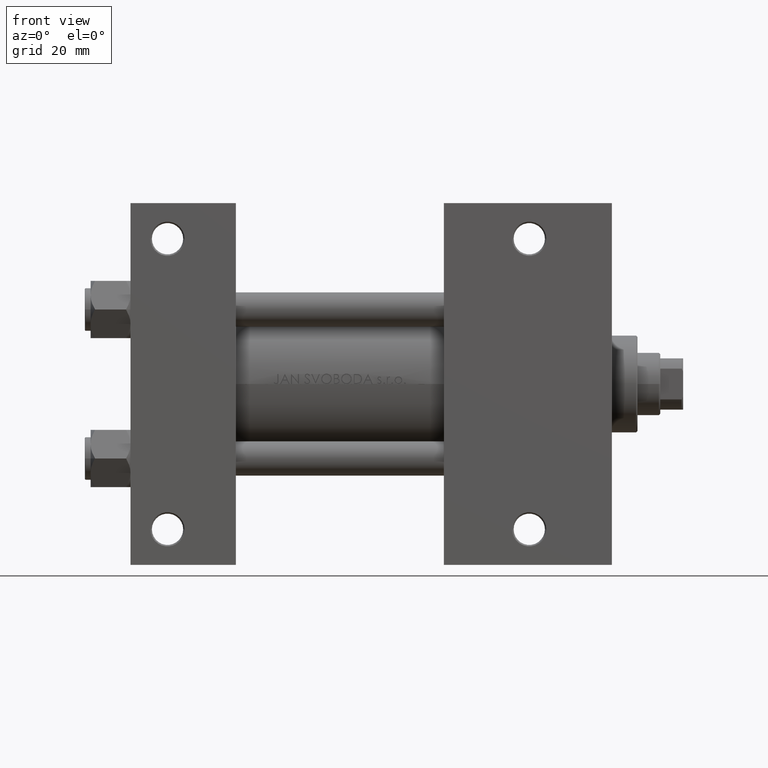
[diagram: clean part render]
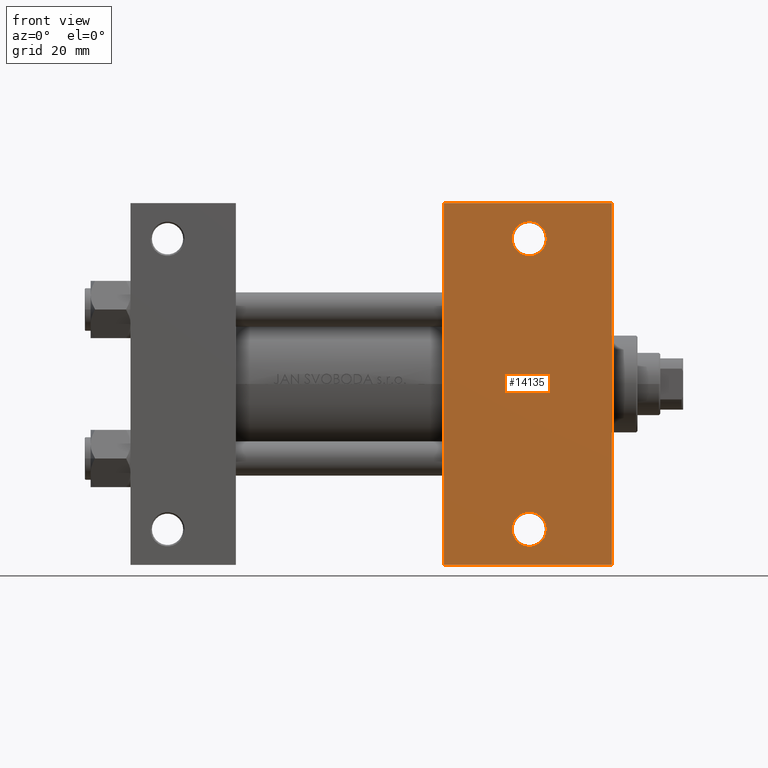
[diagram: same view with one face highlighted and labeled with its STEP entity id]
A machine part, front view. The second image highlights one B-rep face of the part: STEP entity #14135.
In plain terms, the highlighted planar face has unit normal (0, -1, 0).
Its self-contained STEP definition (entity closure, byte-faithful):
#800 = CARTESIAN_POINT ( 'NONE',  ( 109.9999999999999858, 63.50000000000000000, -37.50000000000000000 ) ) ;
#1359 = AXIS2_PLACEMENT_3D ( 'NONE', #1430, #19850, #42783 ) ;
#1366 = CARTESIAN_POINT ( 'NONE',  ( 168.9999999999999716, -63.50000000000002842, -37.50000000000000000 ) ) ;
#1430 = CARTESIAN_POINT ( 'NONE',  ( 140.0000000000000000, -51.00000000000000000, -37.50000000000000000 ) ) ;
#2280 = VERTEX_POINT ( 'NONE', #2603 ) ;
#2603 = CARTESIAN_POINT ( 'NONE',  ( 134.0004999999999882, -51.00000000000000000, -37.50000000000000000 ) ) ;
#3307 = CARTESIAN_POINT ( 'NONE',  ( 140.0000000000000000, -51.00000000000000000, -37.50000000000000000 ) ) ;
#4252 = CARTESIAN_POINT ( 'NONE',  ( 140.0000000000000000, 51.00000000000000000, -37.50000000000000000 ) ) ;
#5037 = EDGE_LOOP ( 'NONE', ( #13892, #46875, #41118, #44359 ) ) ;
#5072 = FACE_BOUND ( 'NONE', #19619, .T. ) ;
#5317 = CARTESIAN_POINT ( 'NONE',  ( 168.9999999999999716, 37.50000000000000000, -37.50000000000000000 ) ) ;
#5350 = CIRCLE ( 'NONE', #1359, 5.999500000000018929 ) ;
#7549 = LINE ( 'NONE', #800, #48077 ) ;
#8200 = CIRCLE ( 'NONE', #36039, 5.999500000000018929 ) ;
#8319 = DIRECTION ( 'NONE',  ( 0.000000000000000000, 0.000000000000000000, -1.000000000000000000 ) ) ;
#9398 = EDGE_CURVE ( 'NONE', #15149, #2280, #35121, .T. ) ;
#11046 = ORIENTED_EDGE ( 'NONE', *, *, #9398, .T. ) ;
#12659 = EDGE_CURVE ( 'NONE', #37334, #20373, #32306, .T. ) ;
#13169 = EDGE_CURVE ( 'NONE', #48715, #20373, #38697, .T. ) ;
#13344 = EDGE_CURVE ( 'NONE', #41480, #25941, #27186, .T. ) ;
#13892 = ORIENTED_EDGE ( 'NONE', *, *, #12659, .F. ) ;
#14135 = ADVANCED_FACE ( 'NONE', ( #5072, #23985, #23502 ), #24228, .T. ) ;
#15149 = VERTEX_POINT ( 'NONE', #29027 ) ;
#15448 = DIRECTION ( 'NONE',  ( -0.000000000000000000, -0.000000000000000000, 1.000000000000000000 ) ) ;
#15490 = DIRECTION ( 'NONE',  ( -1.000000000000000000, 0.000000000000000000, 0.000000000000000000 ) ) ;
#16618 = DIRECTION ( 'NONE',  ( 0.000000000000000000, -1.000000000000000000, 0.000000000000000000 ) ) ;
#17736 = EDGE_CURVE ( 'NONE', #25941, #41480, #8200, .T. ) ;
#18680 = EDGE_LOOP ( 'NONE', ( #35087, #11046 ) ) ;
#19619 = EDGE_LOOP ( 'NONE', ( #35932, #35875 ) ) ;
#19850 = DIRECTION ( 'NONE',  ( -0.000000000000000000, -0.000000000000000000, 1.000000000000000000 ) ) ;
#20373 = VERTEX_POINT ( 'NONE', #33709 ) ;
#23502 = FACE_OUTER_BOUND ( 'NONE', #5037, .T. ) ;
#23985 = FACE_BOUND ( 'NONE', #18680, .T. ) ;
#24228 = PLANE ( 'NONE',  #29581 ) ;
#24757 = AXIS2_PLACEMENT_3D ( 'NONE', #33166, #25196, #40403 ) ;
#25196 = DIRECTION ( 'NONE',  ( -0.000000000000000000, -0.000000000000000000, 1.000000000000000000 ) ) ;
#25553 = AXIS2_PLACEMENT_3D ( 'NONE', #3307, #29952, #15490 ) ;
#25941 = VERTEX_POINT ( 'NONE', #35323 ) ;
#26510 = EDGE_CURVE ( 'NONE', #37334, #47153, #7549, .T. ) ;
#27186 = CIRCLE ( 'NONE', #24757, 5.999500000000018929 ) ;
#28095 = CARTESIAN_POINT ( 'NONE',  ( 109.9999999999999858, 37.50000000000000000, -37.50000000000000000 ) ) ;
#29027 = CARTESIAN_POINT ( 'NONE',  ( 145.9995000000000402, -51.00000000000000000, -37.50000000000000000 ) ) ;
#29284 = CARTESIAN_POINT ( 'NONE',  ( 134.0004999999999882, 51.00000000000000000, -37.50000000000000000 ) ) ;
#29546 = CARTESIAN_POINT ( 'NONE',  ( 169.0000000000000000, 63.50000000000000000, -37.50000000000000000 ) ) ;
#29581 = AXIS2_PLACEMENT_3D ( 'NONE', #5317, #8319, #35211 ) ;
#29952 = DIRECTION ( 'NONE',  ( -0.000000000000000000, -0.000000000000000000, 1.000000000000000000 ) ) ;
#31970 = CARTESIAN_POINT ( 'NONE',  ( 168.9999999999999716, 37.50000000000000000, -37.50000000000000000 ) ) ;
#32204 = LINE ( 'NONE', #31970, #43588 ) ;
#32306 = LINE ( 'NONE', #28095, #46209 ) ;
#33166 = CARTESIAN_POINT ( 'NONE',  ( 140.0000000000000000, 51.00000000000000000, -37.50000000000000000 ) ) ;
#33174 = CARTESIAN_POINT ( 'NONE',  ( 109.9999999999999858, 63.50000000000000000, -37.50000000000000000 ) ) ;
#33363 = EDGE_CURVE ( 'NONE', #2280, #15149, #5350, .T. ) ;
#33709 = CARTESIAN_POINT ( 'NONE',  ( 109.9999999999999716, -63.50000000000000000, -37.50000000000000000 ) ) ;
#34711 = CARTESIAN_POINT ( 'NONE',  ( 109.9999999999999716, -63.50000000000000000, -37.50000000000000000 ) ) ;
#34920 = DIRECTION ( 'NONE',  ( 1.000000000000000000, 0.000000000000000000, 0.000000000000000000 ) ) ;
#35087 = ORIENTED_EDGE ( 'NONE', *, *, #33363, .T. ) ;
#35121 = CIRCLE ( 'NONE', #25553, 5.999500000000018929 ) ;
#35211 = DIRECTION ( 'NONE',  ( -1.000000000000000000, 0.000000000000000000, -0.000000000000000000 ) ) ;
#35323 = CARTESIAN_POINT ( 'NONE',  ( 145.9995000000000402, 51.00000000000000000, -37.50000000000000000 ) ) ;
#35875 = ORIENTED_EDGE ( 'NONE', *, *, #17736, .T. ) ;
#35932 = ORIENTED_EDGE ( 'NONE', *, *, #13344, .T. ) ;
#36039 = AXIS2_PLACEMENT_3D ( 'NONE', #4252, #15448, #37890 ) ;
#37334 = VERTEX_POINT ( 'NONE', #33174 ) ;
#37890 = DIRECTION ( 'NONE',  ( -1.000000000000000000, 0.000000000000000000, 0.000000000000000000 ) ) ;
#38697 = LINE ( 'NONE', #34711, #44642 ) ;
#38828 = EDGE_CURVE ( 'NONE', #47153, #48715, #32204, .T. ) ;
#40403 = DIRECTION ( 'NONE',  ( -1.000000000000000000, 0.000000000000000000, 0.000000000000000000 ) ) ;
#41118 = ORIENTED_EDGE ( 'NONE', *, *, #38828, .T. ) ;
#41480 = VERTEX_POINT ( 'NONE', #29284 ) ;
#42783 = DIRECTION ( 'NONE',  ( -1.000000000000000000, 0.000000000000000000, 0.000000000000000000 ) ) ;
#42914 = DIRECTION ( 'NONE',  ( -1.000000000000000000, 4.704334850106594808E-16, -0.000000000000000000 ) ) ;
#43588 = VECTOR ( 'NONE', #43668, 1000.000000000000000 ) ;
#43668 = DIRECTION ( 'NONE',  ( 0.000000000000000000, -1.000000000000000000, 0.000000000000000000 ) ) ;
#44359 = ORIENTED_EDGE ( 'NONE', *, *, #13169, .T. ) ;
#44642 = VECTOR ( 'NONE', #42914, 1000.000000000000000 ) ;
#46209 = VECTOR ( 'NONE', #16618, 1000.000000000000000 ) ;
#46875 = ORIENTED_EDGE ( 'NONE', *, *, #26510, .T. ) ;
#47153 = VERTEX_POINT ( 'NONE', #29546 ) ;
#48077 = VECTOR ( 'NONE', #34920, 1000.000000000000000 ) ;
#48715 = VERTEX_POINT ( 'NONE', #1366 ) ;